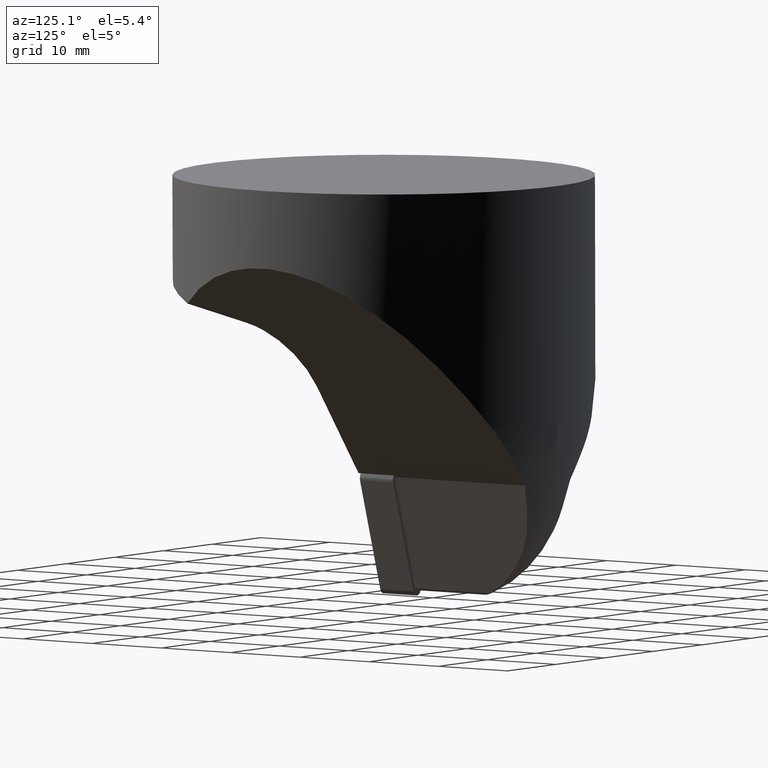
[diagram: clean part render]
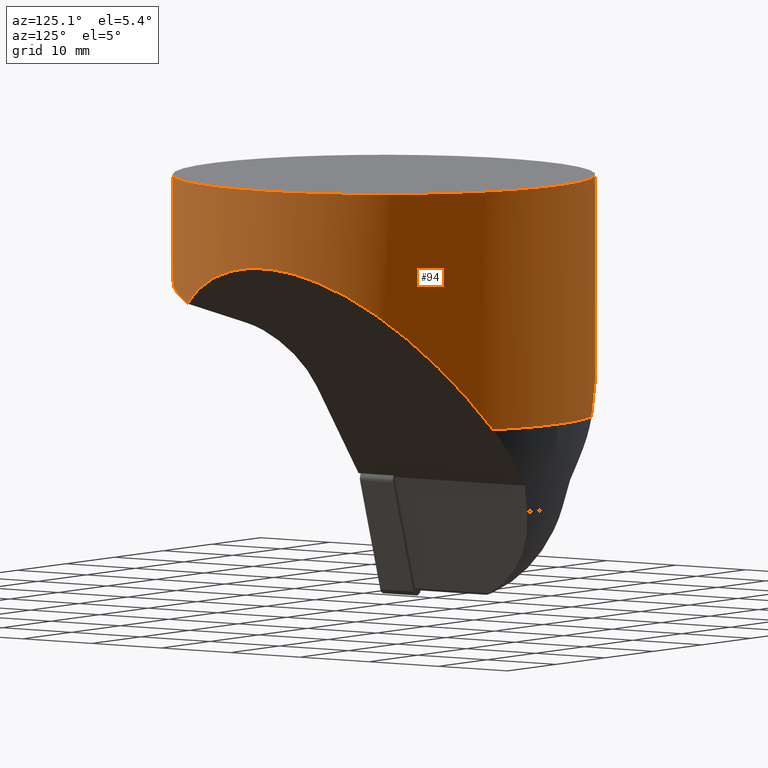
[diagram: same view with one face highlighted and labeled with its STEP entity id]
A machine part, auxiliary view. The second image highlights one B-rep face of the part: STEP entity #94.
In plain terms, the highlighted cylindrical surface (bore or boss wall) has radius 25 mm, axis along (-0, -0, -1).
Its self-contained STEP definition (entity closure, byte-faithful):
#94=ADVANCED_FACE('',(#142,#143),#144,.T.);
#142=FACE_BOUND('',#271,.T.);
#143=FACE_BOUND('',#272,.T.);
#144=CYLINDRICAL_SURFACE('',#273,25.0);
#271=EDGE_LOOP('',(#440));
#272=EDGE_LOOP('',(#441,#442,#443,#444,#445));
#273=AXIS2_PLACEMENT_3D('',#446,#447,#448);
#440=ORIENTED_EDGE('',*,*,#572,.F.);
#441=ORIENTED_EDGE('',*,*,#561,.T.);
#442=ORIENTED_EDGE('',*,*,#573,.F.);
#443=ORIENTED_EDGE('',*,*,#574,.F.);
#444=ORIENTED_EDGE('',*,*,#575,.T.);
#445=ORIENTED_EDGE('',*,*,#576,.T.);
#446=CARTESIAN_POINT('',(3.95709471477376E-014,-9.91480993004866E-016,-25.0));
#447=DIRECTION('',(-0.0,-0.0,-1.0));
#448=DIRECTION('',(-1.0,0.0,0.0));
#561=EDGE_CURVE('',#670,#668,#671,.T.);
#572=EDGE_CURVE('',#687,#687,#688,.T.);
#573=EDGE_CURVE('',#689,#668,#690,.T.);
#574=EDGE_CURVE('',#691,#689,#692,.T.);
#575=EDGE_CURVE('',#691,#693,#694,.T.);
#576=EDGE_CURVE('',#693,#670,#695,.T.);
#668=VERTEX_POINT('',#841);
#670=VERTEX_POINT('',#843);
#671=ELLIPSE('',#844,40.6067311370686,25.0);
#687=VERTEX_POINT('',#940);
#688=CIRCLE('',#941,25.0);
#689=VERTEX_POINT('',#942);
#690=CIRCLE('',#943,25.0);
#691=VERTEX_POINT('',#944);
#692=CIRCLE('',#945,25.0);
#693=VERTEX_POINT('',#946);
#694=ELLIPSE('',#947,40.6067311370686,25.0);
#695=ELLIPSE('',#948,25.8819045102521,25.0);
#841=CARTESIAN_POINT('',(10.1176914581831,22.861153067092,-28.2502267294459));
#843=CARTESIAN_POINT('',(20.9265872029728,-13.6776440967141,-14.4154710676549));
#844=AXIS2_PLACEMENT_3D('',#1065,#1066,#1067);
#940=CARTESIAN_POINT('',(25.0000000000001,-7.11461379087325E-015,0.0));
#941=AXIS2_PLACEMENT_3D('',#1081,#1082,#1083);
#942=CARTESIAN_POINT('',(3.93253988072716E-014,25.0,-28.2502267294459));
#943=AXIS2_PLACEMENT_3D('',#1084,#1085,#1086);
#944=CARTESIAN_POINT('',(-10.1176920443311,22.8611528076797,-28.2502267294459));
#945=AXIS2_PLACEMENT_3D('',#1087,#1088,#1089);
#946=CARTESIAN_POINT('',(-20.9265876469257,-13.6776434174728,-14.4154712496563));
#947=AXIS2_PLACEMENT_3D('',#1090,#1091,#1092);
#948=AXIS2_PLACEMENT_3D('',#1093,#1094,#1095);
#1065=CARTESIAN_POINT('',(3.86827687280375E-014,-1.40232666419428E-015,-41.2002812484586));
#1066=DIRECTION('',(-0.788010753606722,1.31871149599113E-016,0.615661475325658));
#1067=DIRECTION('',(-0.615661475325658,7.10259351107035E-017,-0.788010753606722));
#1081=CARTESIAN_POINT('',(3.95709471477376E-014,-3.57471291939059E-016,7.105427357601E-015));
#1082=DIRECTION('',(0.0,0.0,1.0));
#1083=DIRECTION('',(-1.0,0.0,0.0));
#1084=CARTESIAN_POINT('',(3.95709471477376E-014,-1.07390810496891E-015,-28.2502267294459));
#1085=DIRECTION('',(0.0,0.0,-1.0));
#1086=DIRECTION('',(1.0,0.0,0.0));
#1087=CARTESIAN_POINT('',(3.95709471477376E-014,-1.07390810496891E-015,-28.2502267294459));
#1088=DIRECTION('',(0.0,0.0,-1.0));
#1089=DIRECTION('',(1.0,0.0,0.0));
#1090=CARTESIAN_POINT('',(3.77945903083374E-014,-1.40232661825561E-015,-41.200281998694));
#1091=DIRECTION('',(0.788010753606722,-1.00731325110703E-016,0.615661475325658));
#1092=DIRECTION('',(-0.615661475325658,1.10994450400887E-016,0.788010753606722));
#1093=CARTESIAN_POINT('',(4.13473039871379E-014,-8.15996725893765E-016,-18.0803847577294));
#1094=DIRECTION('',(1.68357269188283E-014,0.258819045102522,0.965925826289068));
#1095=DIRECTION('',(-7.63041880477533E-017,-0.965925826289068,0.258819045102522));